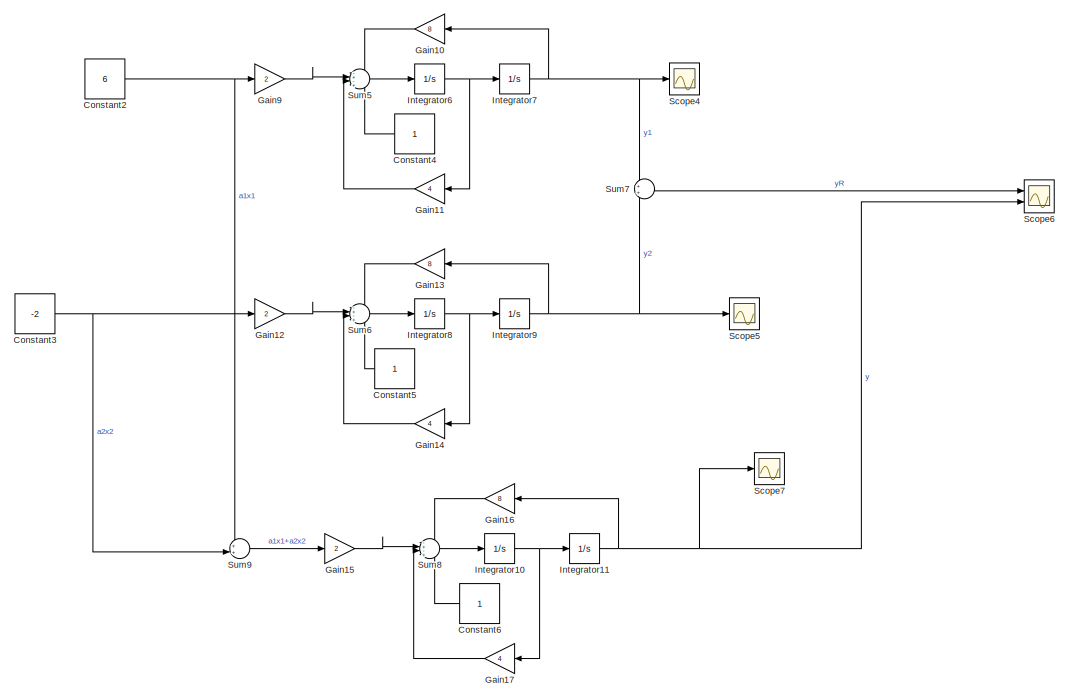
[diagram: root canvas - part 1/2, right side, full height]
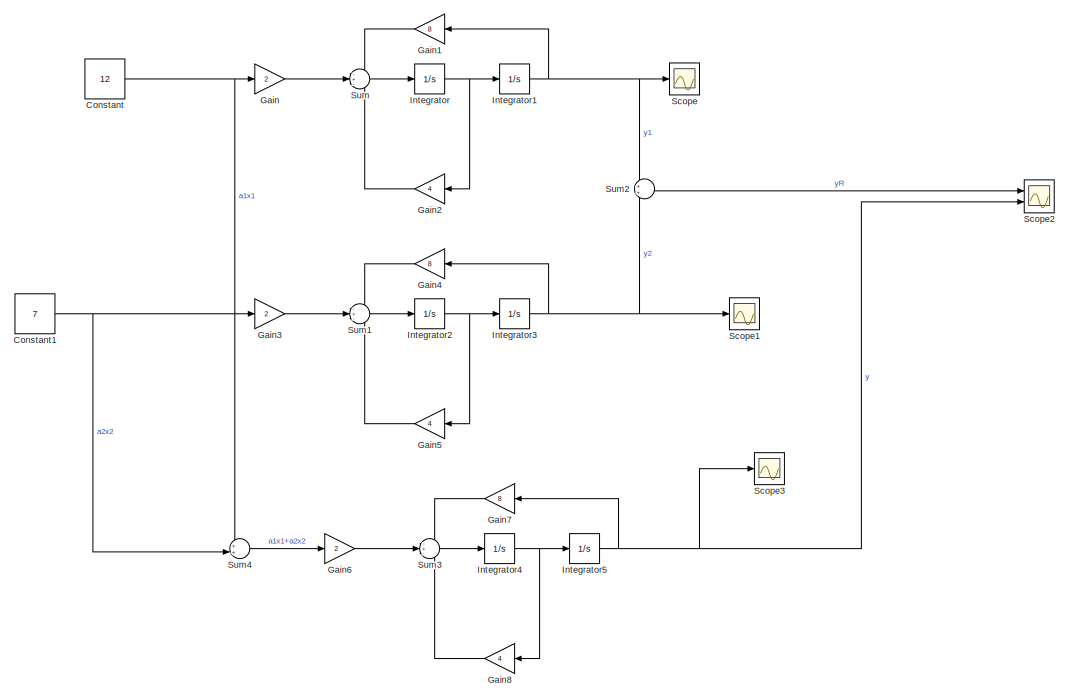
[diagram: root canvas - part 2/2, left side, full height]
MODEL slx_f850e8910318
KIND model
CONFIG AbsTol = auto
CONFIG EnableMultiTasking = off
CONFIG FixedStep = auto
CONFIG MaxStep = auto
CONFIG MinStep = auto
CONFIG RelTol = 1e-3
CONFIG SampleTimeConstraint = Unconstrained
CONFIG SolverName = VariableStepAuto
CONFIG StartTime = 0.0
CONFIG StopTime = 5
BLOCK [Constant] Constant
  SampleTime = -1
  Value = 12
  VectorParams1D = off
BLOCK [Constant] Constant1
  SampleTime = -1
  Value = 7
  VectorParams1D = off
BLOCK [Constant] Constant2
  SampleTime = -1
  Value = 6
  VectorParams1D = off
BLOCK [Constant] Constant3
  SampleTime = -1
  Value = -2
  VectorParams1D = off
BLOCK [Constant] Constant4
  NameLocation = top
  SampleTime = -1
  VectorParams1D = off
BLOCK [Constant] Constant5
  NameLocation = top
  SampleTime = -1
  VectorParams1D = off
BLOCK [Constant] Constant6
  NameLocation = top
  SampleTime = -1
  VectorParams1D = off
BLOCK [Gain] Gain
  Gain = 2
BLOCK [Gain] Gain1
  Gain = 8
  NameLocation = top
BLOCK [Gain] Gain10
  Gain = 8
  NameLocation = top
BLOCK [Gain] Gain11
  Gain = 4
  NameLocation = top
BLOCK [Gain] Gain12
  Gain = 2
BLOCK [Gain] Gain13
  Gain = 8
  NameLocation = top
BLOCK [Gain] Gain14
  Gain = 4
  NameLocation = top
BLOCK [Gain] Gain15
  Gain = 2
BLOCK [Gain] Gain16
  Gain = 8
  NameLocation = top
BLOCK [Gain] Gain17
  Gain = 4
  NameLocation = top
BLOCK [Gain] Gain2
  Gain = 4
  NameLocation = top
BLOCK [Gain] Gain3
  Gain = 2
BLOCK [Gain] Gain4
  Gain = 8
  NameLocation = top
BLOCK [Gain] Gain5
  Gain = 4
  NameLocation = top
BLOCK [Gain] Gain6
  Gain = 2
BLOCK [Gain] Gain7
  Gain = 8
  NameLocation = top
BLOCK [Gain] Gain8
  Gain = 4
  NameLocation = top
BLOCK [Gain] Gain9
  Gain = 2
BLOCK [Integrator] Integrator
  Ports = [1, 1]
BLOCK [Integrator] Integrator1
  Ports = [1, 1]
BLOCK [Integrator] Integrator10
  Ports = [1, 1]
BLOCK [Integrator] Integrator11
  Ports = [1, 1]
BLOCK [Integrator] Integrator2
  Ports = [1, 1]
BLOCK [Integrator] Integrator3
  Ports = [1, 1]
BLOCK [Integrator] Integrator4
  Ports = [1, 1]
BLOCK [Integrator] Integrator5
  Ports = [1, 1]
BLOCK [Integrator] Integrator6
  Ports = [1, 1]
BLOCK [Integrator] Integrator7
  Ports = [1, 1]
BLOCK [Integrator] Integrator8
  Ports = [1, 1]
BLOCK [Integrator] Integrator9
  Ports = [1, 1]
BLOCK [Scope] Scope
  Floating = off
  NumInputPorts = 1
  Ports = [1]
  ScopeSpecificationString = Simulink.scopes.TimeScopeBlockCfg('CurrentConfiguration', extmgr.ConfigurationSet(extmgr.Configuration('Core','General UI',true),extmgr.Configuration('Core','Source UI',true),extmgr.Configuration('Sources','WiredSimulink',true),extmgr.Configuration('Visuals','Time Domain',true,'SerializedDisplays',{struct('MinYLimReal','-0.39114','MaxYLimReal','3.52026','YLabelReal','','MinYLimMag','0.00000','MaxY...<+1322ch>
BLOCK [Scope] Scope1
  Floating = off
  NumInputPorts = 1
  Ports = [1]
  ScopeSpecificationString = Simulink.scopes.TimeScopeBlockCfg('CurrentConfiguration', extmgr.ConfigurationSet(extmgr.Configuration('Core','General UI',true),extmgr.Configuration('Core','Source UI',true),extmgr.Configuration('Sources','WiredSimulink',true,'DataLoggingVariableName','ScopeData1'),extmgr.Configuration('Visuals','Time Domain',true,'SerializedDisplays',{struct('MinYLimReal','-0.22816','MaxYLimReal','2.05348','YLab...<+1361ch>
BLOCK [Scope] Scope2
  Floating = off
  NumInputPorts = 2
  Ports = [2]
  ScopeSpecificationString = Simulink.scopes.TimeScopeBlockCfg('CurrentConfiguration', extmgr.ConfigurationSet(extmgr.Configuration('Core','General UI',true),extmgr.Configuration('Core','Source UI',true),extmgr.Configuration('Sources','WiredSimulink',true,'DataLoggingVariableName','ScopeData2'),extmgr.Configuration('Visuals','Time Domain',true,'SerializedDisplays',{struct('MinYLimReal','-0.6193','MaxYLimReal','5.57374','YLabe...<+1481ch>
BLOCK [Scope] Scope3
  Floating = off
  NumInputPorts = 1
  Ports = [1]
  ScopeSpecificationString = Simulink.scopes.TimeScopeBlockCfg('CurrentConfiguration', extmgr.ConfigurationSet(extmgr.Configuration('Core','General UI',true),extmgr.Configuration('Core','Source UI',true),extmgr.Configuration('Sources','WiredSimulink',true,'DataLoggingVariableName','ScopeData3'),extmgr.Configuration('Visuals','Time Domain',true,'SerializedDisplays',{struct('MinYLimReal','-0.6193','MaxYLimReal','5.57374','YLabe...<+1358ch>
BLOCK [Scope] Scope4
  Floating = off
  NumInputPorts = 1
  Ports = [1]
  ScopeSpecificationString = Simulink.scopes.TimeScopeBlockCfg('CurrentConfiguration', extmgr.ConfigurationSet(extmgr.Configuration('Core','General UI',true),extmgr.Configuration('Core','Source UI',true),extmgr.Configuration('Sources','WiredSimulink',true,'DataLoggingVariableName','ScopeData4'),extmgr.Configuration('Visuals','Time Domain',true,'SerializedDisplays',{struct('MinYLimReal','-0.39114','MaxYLimReal','3.52026','YLab...<+1361ch>
BLOCK [Scope] Scope5
  Floating = off
  NumInputPorts = 1
  Ports = [1]
  ScopeSpecificationString = Simulink.scopes.TimeScopeBlockCfg('CurrentConfiguration', extmgr.ConfigurationSet(extmgr.Configuration('Core','General UI',true),extmgr.Configuration('Core','Source UI',true),extmgr.Configuration('Sources','WiredSimulink',true,'DataLoggingVariableName','ScopeData5'),extmgr.Configuration('Visuals','Time Domain',true,'SerializedDisplays',{struct('MinYLimReal','-0.22816','MaxYLimReal','2.05348','YLab...<+1361ch>
BLOCK [Scope] Scope6
  Floating = off
  NumInputPorts = 2
  Ports = [2]
  ScopeSpecificationString = Simulink.scopes.TimeScopeBlockCfg('CurrentConfiguration', extmgr.ConfigurationSet(extmgr.Configuration('Core','General UI',true),extmgr.Configuration('Core','Source UI',true),extmgr.Configuration('Sources','WiredSimulink',true,'DataLoggingVariableName','ScopeData6'),extmgr.Configuration('Visuals','Time Domain',true,'SerializedDisplays',{struct('MinYLimReal','-0.16297','MaxYLimReal','1.46677','YLab...<+1485ch>
BLOCK [Scope] Scope7
  Floating = off
  NumInputPorts = 1
  Ports = [1]
  ScopeSpecificationString = Simulink.scopes.TimeScopeBlockCfg('CurrentConfiguration', extmgr.ConfigurationSet(extmgr.Configuration('Core','General UI',true),extmgr.Configuration('Core','Source UI',true),extmgr.Configuration('Sources','WiredSimulink',true,'DataLoggingVariableName','ScopeData7'),extmgr.Configuration('Visuals','Time Domain',true,'SerializedDisplays',{struct('MinYLimReal','-0.6193','MaxYLimReal','5.57374','YLabe...<+1358ch>
BLOCK [Sum] Sum
  Inputs = -+-
  Ports = [3, 1]
BLOCK [Sum] Sum1
  Inputs = -+-
  Ports = [3, 1]
BLOCK [Sum] Sum2
  Ports = [2, 1]
BLOCK [Sum] Sum3
  Inputs = -+-
  Ports = [3, 1]
BLOCK [Sum] Sum4
  Inputs = ++|
  Ports = [2, 1]
BLOCK [Sum] Sum5
  Inputs = -+-+
  Ports = [4, 1]
BLOCK [Sum] Sum6
  Inputs = -+-+
  Ports = [4, 1]
BLOCK [Sum] Sum7
  Ports = [2, 1]
BLOCK [Sum] Sum8
  Inputs = -+-+
  Ports = [4, 1]
BLOCK [Sum] Sum9
  Inputs = ++|
  Ports = [2, 1]
NET Constant1:1 -> Gain3:1, Sum4:2
NET Constant2:1 -> Gain9:1, Sum9:1
NET Constant3:1 -> Gain12:1, Sum9:2
LINE Constant4:1 -> Sum5:4
LINE Constant5:1 -> Sum6:4
LINE Constant6:1 -> Sum8:4
NET Constant:1 -> Gain:1, Sum4:1
LINE Gain10:1 -> Sum5:1
LINE Gain11:1 -> Sum5:3
LINE Gain12:1 -> Sum6:2
LINE Gain13:1 -> Sum6:1
LINE Gain14:1 -> Sum6:3
LINE Gain15:1 -> Sum8:2
LINE Gain16:1 -> Sum8:1
LINE Gain17:1 -> Sum8:3
LINE Gain1:1 -> Sum:1
LINE Gain2:1 -> Sum:3
LINE Gain3:1 -> Sum1:2
LINE Gain4:1 -> Sum1:1
LINE Gain5:1 -> Sum1:3
LINE Gain6:1 -> Sum3:2
LINE Gain7:1 -> Sum3:1
LINE Gain8:1 -> Sum3:3
LINE Gain9:1 -> Sum5:2
LINE Gain:1 -> Sum:2
NET Integrator10:1 -> Gain17:1, Integrator11:1
NET Integrator11:1 -> Gain16:1, Scope6:2, Scope7:1
NET Integrator1:1 -> Gain1:1, Scope:1, Sum2:1
NET Integrator2:1 -> Gain5:1, Integrator3:1
NET Integrator3:1 -> Gain4:1, Scope1:1, Sum2:2
NET Integrator4:1 -> Gain8:1, Integrator5:1
NET Integrator5:1 -> Gain7:1, Scope2:2, Scope3:1
NET Integrator6:1 -> Gain11:1, Integrator7:1
NET Integrator7:1 -> Gain10:1, Scope4:1, Sum7:1
NET Integrator8:1 -> Gain14:1, Integrator9:1
NET Integrator9:1 -> Gain13:1, Scope5:1, Sum7:2
NET Integrator:1 -> Gain2:1, Integrator1:1
LINE Sum1:1 -> Integrator2:1
LINE Sum2:1 -> Scope2:1
LINE Sum3:1 -> Integrator4:1
LINE Sum4:1 -> Gain6:1
LINE Sum5:1 -> Integrator6:1
LINE Sum6:1 -> Integrator8:1
LINE Sum7:1 -> Scope6:1
LINE Sum8:1 -> Integrator10:1
LINE Sum9:1 -> Gain15:1
LINE Sum:1 -> Integrator:1
note: NET lines group one-source signal fan-out (src -> all destinations, sorted); 1:1 wires keep LINE
